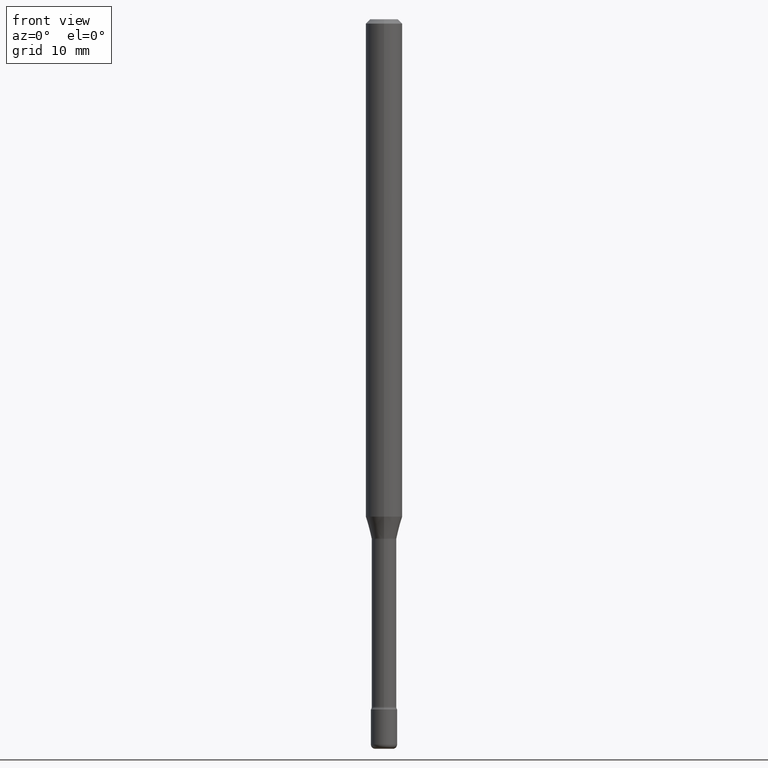
[diagram: clean part render]
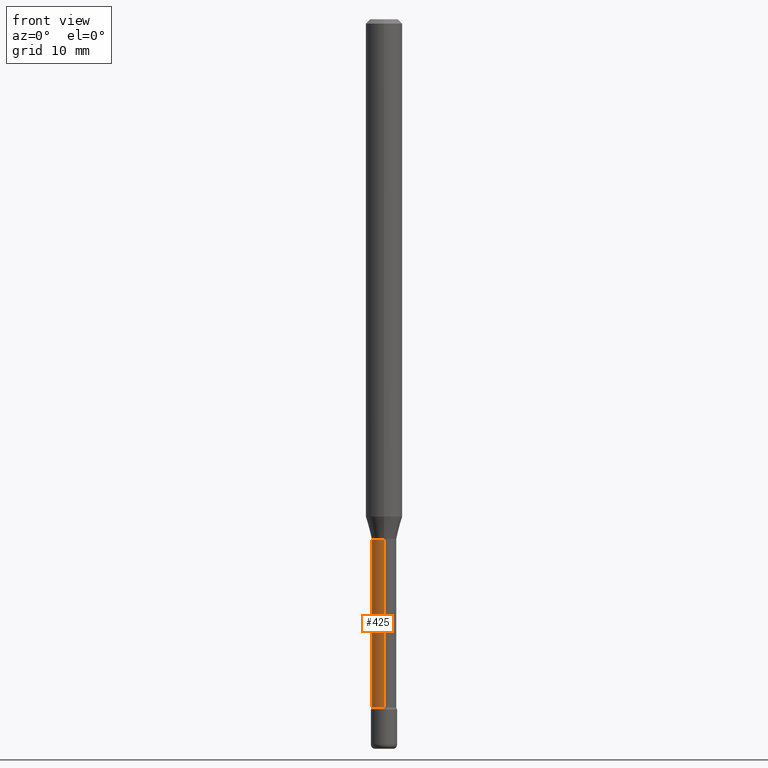
[diagram: same view with one face highlighted and labeled with its STEP entity id]
A machine part, front view. The second image highlights one B-rep face of the part: STEP entity #425.
In plain terms, the highlighted cylindrical surface (edge-blend (fillet) strip) has radius 1.0744 mm, axis along (-0, 0, 1).
Its self-contained STEP definition (entity closure, byte-faithful):
#7 = DIRECTION ( 'NONE',  ( -6.982962677686265133E-15, -1.000000000000000000, 3.491562882129239866E-15 ) ) ;
#10 = CYLINDRICAL_SURFACE ( 'NONE', #326, 0.04230000000000001120 ) ;
#54 = FACE_OUTER_BOUND ( 'NONE', #215, .T. ) ;
#61 = DIRECTION ( 'NONE',  ( -2.445411864812793917E-29, 3.491562882129241838E-15, 1.000000000000000000 ) ) ;
#77 = VERTEX_POINT ( 'NONE', #308 ) ;
#96 = EDGE_CURVE ( 'NONE', #561, #473, #265, .T. ) ;
#99 = DIRECTION ( 'NONE',  ( -6.982962677686266711E-15, -1.000000000000000000, 6.458269488567998169E-15 ) ) ;
#138 = ORIENTED_EDGE ( 'NONE', *, *, #144, .T. ) ;
#144 = EDGE_CURVE ( 'NONE', #259, #473, #333, .T. ) ;
#202 = CARTESIAN_POINT ( 'NONE',  ( -2.953793212660856168E-16, -0.04230000000000624233, -1.781974787463810994 ) ) ;
#207 = VECTOR ( 'NONE', #61, 39.37007874015748143 ) ;
#215 = EDGE_LOOP ( 'NONE', ( #260, #490, #138, #509 ) ) ;
#232 = CARTESIAN_POINT ( 'NONE',  ( 5.762404092109162712E-29, -8.227569567868378496E-15, -2.356414547187247521 ) ) ;
#254 = CARTESIAN_POINT ( 'NONE',  ( 4.357662288061261093E-29, -6.221877024798788192E-15, -1.781974787463811216 ) ) ;
#259 = VERTEX_POINT ( 'NONE', #539 ) ;
#260 = ORIENTED_EDGE ( 'NONE', *, *, #511, .F. ) ;
#265 = CIRCLE ( 'NONE', #352, 0.04230000000000001814 ) ;
#266 = CARTESIAN_POINT ( 'NONE',  ( 3.005595772265223596E-16, 0.04230000000000001120, 3.303802889771791252E-16 ) ) ;
#308 = CARTESIAN_POINT ( 'NONE',  ( 3.101519041593414751E-16, 0.04229999999999176780, -2.356414547187247965 ) ) ;
#326 = AXIS2_PLACEMENT_3D ( 'NONE', #408, #491, #7 ) ;
#333 = LINE ( 'NONE', #458, #207 ) ;
#352 = AXIS2_PLACEMENT_3D ( 'NONE', #254, #390, #558 ) ;
#362 = DIRECTION ( 'NONE',  ( -2.445411864812793917E-29, 3.491562882129241838E-15, 1.000000000000000000 ) ) ;
#364 = EDGE_CURVE ( 'NONE', #77, #259, #472, .T. ) ;
#390 = DIRECTION ( 'NONE',  ( -2.445411864812793917E-29, 3.491562882129241838E-15, 1.000000000000000000 ) ) ;
#397 = VECTOR ( 'NONE', #401, 39.37007874015748143 ) ;
#401 = DIRECTION ( 'NONE',  ( -2.445411864812793917E-29, 3.491562882129241838E-15, 1.000000000000000000 ) ) ;
#408 = CARTESIAN_POINT ( 'NONE',  ( -1.169113584055446105E-44, 1.669184350826100908E-30, 4.780733988912460139E-16 ) ) ;
#425 = ADVANCED_FACE ( 'NONE', ( #54 ), #10, .T. ) ;
#458 = CARTESIAN_POINT ( 'NONE',  ( -2.953793212661291028E-16, -0.04230000000000001120, 6.257665088053130012E-16 ) ) ;
#472 = CIRCLE ( 'NONE', #549, 0.04229999999999999732 ) ;
#473 = VERTEX_POINT ( 'NONE', #202 ) ;
#476 = LINE ( 'NONE', #266, #397 ) ;
#490 = ORIENTED_EDGE ( 'NONE', *, *, #364, .T. ) ;
#491 = DIRECTION ( 'NONE',  ( -2.445411864812793917E-29, 3.491562882129241838E-15, 1.000000000000000000 ) ) ;
#509 = ORIENTED_EDGE ( 'NONE', *, *, #96, .F. ) ;
#511 = EDGE_CURVE ( 'NONE', #77, #561, #476, .T. ) ;
#539 = CARTESIAN_POINT ( 'NONE',  ( -2.953793212660714173E-16, -0.04230000000000822685, -2.356414547187247077 ) ) ;
#549 = AXIS2_PLACEMENT_3D ( 'NONE', #232, #362, #99 ) ;
#558 = DIRECTION ( 'NONE',  ( -6.982962677686266711E-15, -1.000000000000000000, 6.458269488567995014E-15 ) ) ;
#560 = CARTESIAN_POINT ( 'NONE',  ( 3.005595772265801930E-16, 0.04229999999999379395, -1.781974787463811438 ) ) ;
#561 = VERTEX_POINT ( 'NONE', #560 ) ;